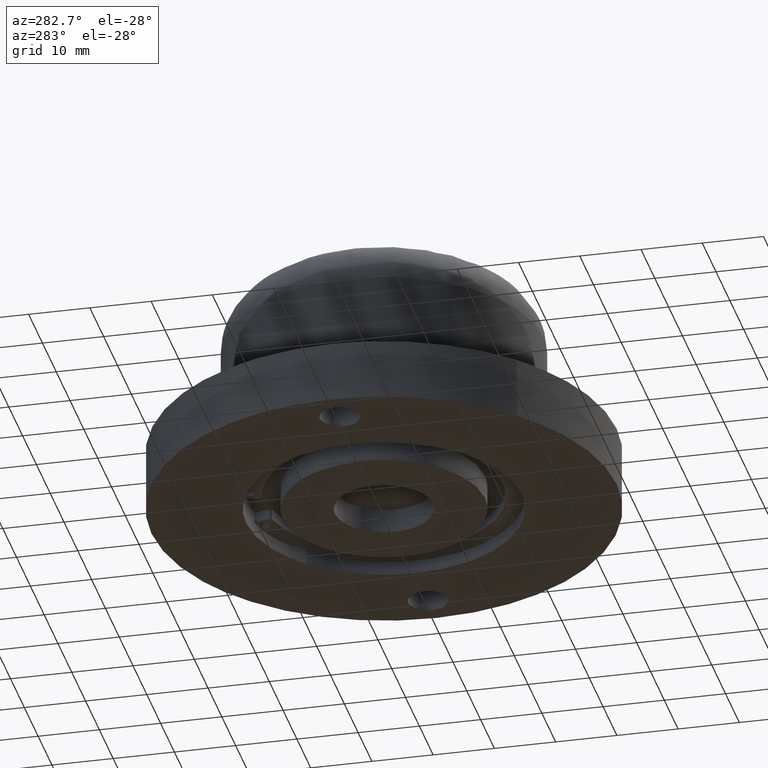
[diagram: clean part render]
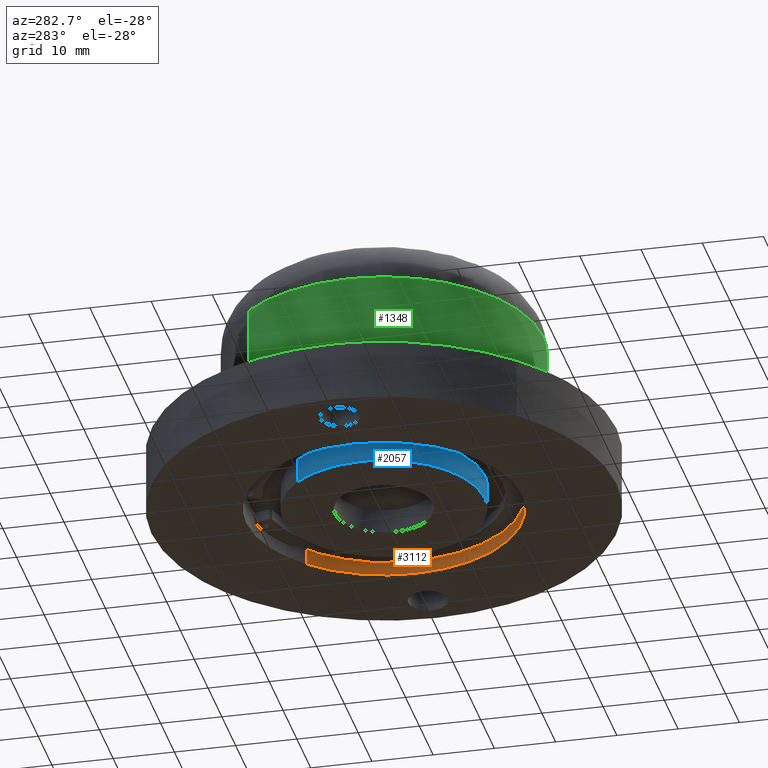
[diagram: same view with three faces highlighted in distinct colors, each labeled with its STEP entity id]
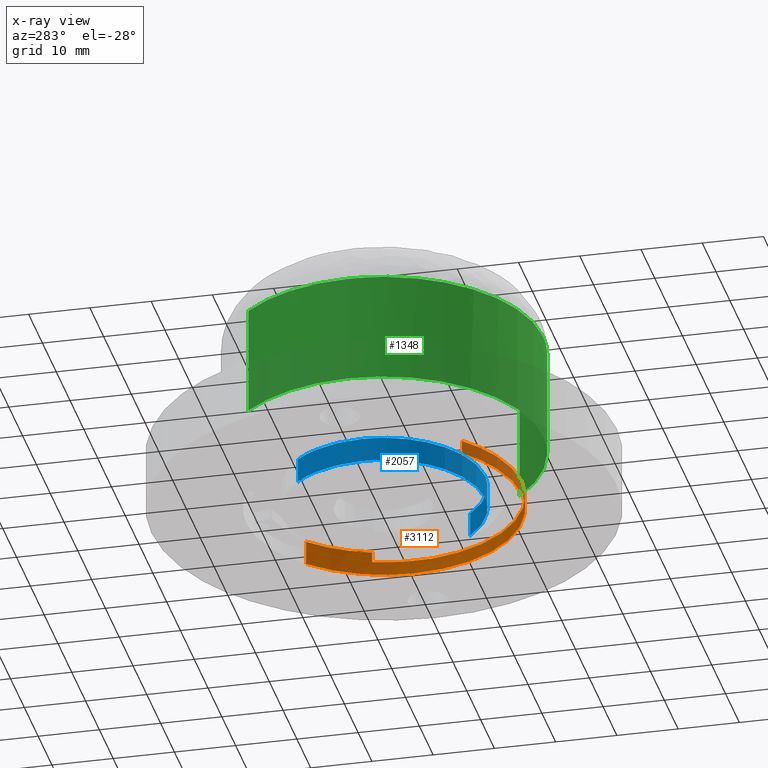
[diagram: x-ray of the same camera — body ghosted, the three highlighted faces saturated]
A machine part, auxiliary view with three faces highlighted in distinct colors.
The next image is the same camera in x-ray (body ghosted, the three faces saturated) — at least one of them is partly hidden behind the body in this view.
Their STEP definitions:

[orange] entity #3112 — the highlighted face is a freeform B-spline surface patch.
#2502=CARTESIAN_POINT('',(21.461298704985850,6.757415030569860,4.0));
#2503=VERTEX_POINT('',#2502);
#2521=CARTESIAN_POINT('',(15.588206037484660,16.225222110434320,4.0));
#2522=VERTEX_POINT('',#2521);
#2530=CARTESIAN_POINT('',(15.588206037484660,16.225222110434320,4.0));
#2531=CARTESIAN_POINT('',(16.645479522244440,15.209712594921200,3.999999999999992));
#2532=CARTESIAN_POINT('',(18.139009383689100,13.463488660675020,4.000000000000009));
#2533=CARTESIAN_POINT('',(20.120222387526109,10.269566843945579,4.000000000000001));
#2534=CARTESIAN_POINT('',(21.021211407191629,8.155780293965776,3.999999999999998));
#2535=CARTESIAN_POINT('',(21.461298704985850,6.757415030569860,4.0));
#2536=B_SPLINE_CURVE_WITH_KNOTS('',3,(#2530,#2531,#2532,#2533,#2534,#2535),.UNSPECIFIED.,.F.,.U.,(4,1,1,4),(4.611211E-009,4.397893220981758,6.860704411252302,11.258597627622599),.UNSPECIFIED.);
#2537=EDGE_CURVE('',#2522,#2503,#2536,.T.);
#2555=CARTESIAN_POINT('',(22.500000000000000,0.0,0.0));
#2556=VERTEX_POINT('',#2555);
#2557=CARTESIAN_POINT('',(-0.000001007943943,-22.499999999999979,0.0));
#2558=VERTEX_POINT('',#2557);
#2559=CARTESIAN_POINT('',(22.500000000000000,0.0,0.0));
#2560=CARTESIAN_POINT('',(22.500084421633488,-1.196509804189176,0.0));
#2561=CARTESIAN_POINT('',(22.319695605257539,-3.451434104914415,0.0));
#2562=CARTESIAN_POINT('',(21.625261004637292,-6.416037172447368,0.0));
#2563=CARTESIAN_POINT('',(20.669832038664790,-9.010649973098776,0.0));
#2564=CARTESIAN_POINT('',(19.529704174569719,-11.275728144356220,0.0));
#2565=CARTESIAN_POINT('',(18.185043236328909,-13.315084904862980,0.0));
#2566=CARTESIAN_POINT('',(16.612803665246791,-15.242922577701490,0.0));
#2567=CARTESIAN_POINT('',(14.934551686697841,-16.890561685435610,0.0));
#2568=CARTESIAN_POINT('',(12.941870068568850,-18.455508169422561,0.0));
#2569=CARTESIAN_POINT('',(10.600608099167451,-19.928105995401811,0.0));
#2570=CARTESIAN_POINT('',(7.443913242386977,-21.350773155513970,0.0));
#2571=CARTESIAN_POINT('',(3.773576835690184,-22.294018892011540,0.0));
#2572=CARTESIAN_POINT('',(1.196498320649902,-22.500064118313830,0.0));
#2573=CARTESIAN_POINT('',(-0.000001007943943,-22.499999999999979,0.0));
#2574=B_SPLINE_CURVE_WITH_KNOTS('',3,(#2559,#2560,#2561,#2562,#2563,#2564,#2565,#2566,#2567,#2568,#2569,#2570,#2571,#2572,#2573),.UNSPECIFIED.,.F.,.U.,(4,1,1,1,1,1,1,1,1,1,1,1,4),(0.000000054818592,3.589519467578437,6.764863016691638,9.111861811803166,11.873045435385009,14.358083994149879,16.428995356954381,19.328154013437210,21.399065162000191,24.022171446276658,27.611698208319389,31.753474319223422,35.342973363759612),.UNSPECIFIED.);
#2575=EDGE_CURVE('',#2556,#2558,#2574,.T.);
#2577=CARTESIAN_POINT('',(15.588206218042719,16.225222286121198,-2.081668E-016));
#2578=VERTEX_POINT('',#2577);
#2579=CARTESIAN_POINT('',(15.588206218042719,16.225222286121198,-2.081668E-016));
#2580=CARTESIAN_POINT('',(16.336925753051339,15.505950925662621,-1.989387E-016));
#2581=CARTESIAN_POINT('',(17.670989713196949,14.033613017425189,-1.800488E-016));
#2582=CARTESIAN_POINT('',(19.578002296755201,11.270492206081190,-1.445985E-016));
#2583=CARTESIAN_POINT('',(21.185583473393351,7.941988164421415,-1.018943E-016));
#2584=CARTESIAN_POINT('',(22.262372888276101,4.011337908746667,-5.146478E-017));
#2585=CARTESIAN_POINT('',(22.500111218608470,1.321395872532981,-1.695328E-017));
#2586=CARTESIAN_POINT('',(22.500000000000000,0.0,0.0));
#2587=B_SPLINE_CURVE_WITH_KNOTS('',3,(#2579,#2580,#2581,#2582,#2583,#2584,#2585,#2586),.UNSPECIFIED.,.F.,.U.,(4,1,1,1,1,4),(0.000000014759230,3.114704697409676,5.946268077443961,10.052019635387680,14.157780201698150,18.121957143275409),.UNSPECIFIED.);
#2588=EDGE_CURVE('',#2578,#2556,#2587,.T.);
#2623=CARTESIAN_POINT('',(-15.588206217749841,-16.225222286402900,4.926615E-016));
#2624=VERTEX_POINT('',#2623);
#2636=CARTESIAN_POINT('',(-0.000001007943943,-22.499999999999979,0.0));
#2637=CARTESIAN_POINT('',(-1.076312043869605,-22.500038106771889,3.401655E-017));
#2638=CARTESIAN_POINT('',(-3.453170942692648,-22.329191823971360,1.091366E-016));
#2639=CARTESIAN_POINT('',(-6.871729787357237,-21.528062211943809,2.171793E-016));
#2640=CARTESIAN_POINT('',(-9.781332259727018,-20.326279036486770,3.091366E-016));
#2641=CARTESIAN_POINT('',(-12.713169818218390,-18.669998914277318,4.017966E-016));
#2642=CARTESIAN_POINT('',(-14.488811371346880,-17.281796453356570,4.579154E-016));
#2643=CARTESIAN_POINT('',(-15.588206217749841,-16.225222286402900,4.926615E-016));
#2644=B_SPLINE_CURVE_WITH_KNOTS('',3,(#2636,#2637,#2638,#2639,#2640,#2641,#2642,#2643),.UNSPECIFIED.,.F.,.U.,(4,1,1,1,1,4),(0.000000014218646,3.228937824648604,7.130590066548935,10.494044223362691,12.646682252483870,17.221014949854158),.UNSPECIFIED.);
#2645=EDGE_CURVE('',#2558,#2624,#2644,.T.);
#3037=CARTESIAN_POINT('',(15.588206055318709,16.225222093300449,4.100000000000000));
#3038=CARTESIAN_POINT('',(31.813428148619156,0.637016037981732,4.100000000000000));
#3039=CARTESIAN_POINT('',(16.225222093300449,-15.588206055318709,4.100000000000000));
#3040=CARTESIAN_POINT('',(0.637016037981732,-31.813428148619156,4.100000000000000));
#3041=CARTESIAN_POINT('',(-15.588206055318709,-16.225222093300449,4.100000000000000));
#3042=CARTESIAN_POINT('',(15.588206055318709,16.225222093300449,-0.102500000000000));
#3043=CARTESIAN_POINT('',(31.813428148619156,0.637016037981732,-0.102500000000000));
#3044=CARTESIAN_POINT('',(16.225222093300449,-15.588206055318709,-0.102500000000000));
#3045=CARTESIAN_POINT('',(0.637016037981732,-31.813428148619156,-0.102500000000000));
#3046=CARTESIAN_POINT('',(-15.588206055318709,-16.225222093300449,-0.102500000000000));
#3054=(BOUNDED_SURFACE()B_SPLINE_SURFACE(2,1,((#3037,#3042),(#3038,#3043),(#3039,#3044),(#3040,#3045),(#3041,#3046)),.UNSPECIFIED.,.F.,.F.,.U.)B_SPLINE_SURFACE_WITH_KNOTS((3,2,3),(2,2),(0.0,37.279220613578552,74.558441227157104),(0.0,4.202500000000000),.UNSPECIFIED.)GEOMETRIC_REPRESENTATION_ITEM()RATIONAL_B_SPLINE_SURFACE(((1.0,1.0),(0.707106781186548,0.707106781186548),(1.0,1.0),(0.707106781186548,0.707106781186548),(1.0,1.0)))REPRESENTATION_ITEM('')SURFACE());
#3055=ORIENTED_EDGE('',*,*,#2588,.T.);
#3056=ORIENTED_EDGE('',*,*,#2575,.T.);
#3057=ORIENTED_EDGE('',*,*,#2645,.T.);
#3058=CARTESIAN_POINT('',(-15.588206031640730,-16.225222116048808,2.250000000000231));
#3059=VERTEX_POINT('',#3058);
#3060=CARTESIAN_POINT('',(-15.588206031640730,-16.225222116048808,2.250000000000231));
#3061=CARTESIAN_POINT('',(-15.588206217749841,-16.225222286402900,4.926615E-016));
#3062=QUASI_UNIFORM_CURVE('',1,(#3060,#3061),.UNSPECIFIED.,.F.,.U.);
#3063=EDGE_CURVE('',#3059,#2624,#3062,.T.);
#3064=ORIENTED_EDGE('',*,*,#3063,.F.);
#3065=CARTESIAN_POINT('',(-0.000000973178539,-22.499999999999979,2.250000000000085));
#3066=VERTEX_POINT('',#3065);
#3067=CARTESIAN_POINT('',(-0.000000973178539,-22.499999999999979,2.250000000000085));
#3068=CARTESIAN_POINT('',(-1.031464537365645,-22.500034189043280,2.250000000000103));
#3069=CARTESIAN_POINT('',(-3.273784162294135,-22.345576397595099,2.250000000000133));
#3070=CARTESIAN_POINT('',(-6.304617732022301,-21.673422132211449,2.250000000000171));
#3071=CARTESIAN_POINT('',(-9.462565108374351,-20.499933379318250,2.250000000000202));
#3072=CARTESIAN_POINT('',(-12.545115556580919,-18.818822723518341,2.250000000000223));
#3073=CARTESIAN_POINT('',(-14.618089571007770,-17.157402602431951,2.250000000000231));
#3074=CARTESIAN_POINT('',(-15.588206031640730,-16.225222116048808,2.250000000000231));
#3075=B_SPLINE_CURVE_WITH_KNOTS('',3,(#3067,#3068,#3069,#3070,#3071,#3072,#3073,#3074),.UNSPECIFIED.,.F.,.U.,(4,1,1,1,1,4),(0.000000014216898,3.094395116773921,6.726970710326494,9.283186606547154,13.184840119859601,17.221014872080300),.UNSPECIFIED.);
#3076=EDGE_CURVE('',#3066,#3059,#3075,.T.);
#3077=ORIENTED_EDGE('',*,*,#3076,.F.);
#3078=CARTESIAN_POINT('',(21.461298704985900,6.757415030569860,2.249999999999405));
#3079=VERTEX_POINT('',#3078);
#3080=CARTESIAN_POINT('',(21.461298704985900,6.757415030569860,2.249999999999405));
#3081=CARTESIAN_POINT('',(21.874060171797399,5.446979462053194,2.249999999999425));
#3082=CARTESIAN_POINT('',(22.411583275024011,2.965952034556976,2.249999999999453));
#3083=CARTESIAN_POINT('',(22.562500829329220,-0.392911894650313,2.249999999999486));
#3084=CARTESIAN_POINT('',(22.270921337241340,-3.737647167205898,2.249999999999577));
#3085=CARTESIAN_POINT('',(21.479142796887089,-7.066357372958608,2.249999999999601));
#3086=CARTESIAN_POINT('',(20.086332904471760,-10.308497361590350,2.249999999999689));
#3087=CARTESIAN_POINT('',(18.305984844463339,-13.221417369801671,2.249999999999741));
#3088=CARTESIAN_POINT('',(16.433778789938270,-15.466136984073680,2.249999999999800));
#3089=CARTESIAN_POINT('',(14.409204705636320,-17.328567037289279,2.249999999999844));
#3090=CARTESIAN_POINT('',(12.650041573775731,-18.651577739959940,2.249999999999889));
#3091=CARTESIAN_POINT('',(10.675095125591740,-19.851287354860169,2.249999999999929));
#3092=CARTESIAN_POINT('',(8.040044099831034,-21.102655623814648,2.249999999999959));
#3093=CARTESIAN_POINT('',(4.451367186854829,-22.200054073947602,2.250000000000076));
#3094=CARTESIAN_POINT('',(1.538781866729575,-22.500210672231809,2.250000000000036));
#3095=CARTESIAN_POINT('',(-0.000000973178539,-22.499999999999979,2.250000000000085));
#3096=B_SPLINE_CURVE_WITH_KNOTS('',3,(#3080,#3081,#3082,#3083,#3084,#3085,#3086,#3087,#3088,#3089,#3090,#3091,#3092,#3093,#3094,#3095),.UNSPECIFIED.,.F.,.U.,(4,1,1,1,1,1,1,1,1,1,1,1,1,4),(0.000000051172144,4.121689372997068,7.583956688152156,10.056985513913750,14.178717154172880,17.805814164527028,20.608625583875600,24.400548004355478,26.543829045678908,28.852002970672320,30.995303535835859,33.468341797129277,37.590060066702897,42.206370948490303),.UNSPECIFIED.);
#3097=EDGE_CURVE('',#3079,#3066,#3096,.T.);
#3098=ORIENTED_EDGE('',*,*,#3097,.F.);
#3099=CARTESIAN_POINT('',(21.461298704985850,6.757415030569860,4.0));
#3100=CARTESIAN_POINT('',(21.461298704985900,6.757415030569860,2.249999999999405));
#3101=QUASI_UNIFORM_CURVE('',1,(#3099,#3100),.UNSPECIFIED.,.F.,.U.);
#3102=EDGE_CURVE('',#2503,#3079,#3101,.T.);
#3103=ORIENTED_EDGE('',*,*,#3102,.F.);
#3104=ORIENTED_EDGE('',*,*,#2537,.F.);
#3105=CARTESIAN_POINT('',(15.588206037484660,16.225222110434320,4.0));
#3106=CARTESIAN_POINT('',(15.588206218042719,16.225222286121198,-2.081668E-016));
#3107=QUASI_UNIFORM_CURVE('',1,(#3105,#3106),.UNSPECIFIED.,.F.,.U.);
#3108=EDGE_CURVE('',#2522,#2578,#3107,.T.);
#3109=ORIENTED_EDGE('',*,*,#3108,.T.);
#3110=EDGE_LOOP('',(#3055,#3056,#3057,#3064,#3077,#3098,#3103,#3104,#3109));
#3111=FACE_OUTER_BOUND('',#3110,.T.);
#3112=ADVANCED_FACE('',(#3111),#3054,.F.);

[blue] entity #2057 — the highlighted face is a freeform B-spline surface patch.
#1619=CARTESIAN_POINT('',(11.968676961405169,-11.357850386732320,3.801882E-012));
#1620=VERTEX_POINT('',#1619);
#1632=CARTESIAN_POINT('',(-0.000000775139092,-16.499999999999979,0.0));
#1633=VERTEX_POINT('',#1632);
#1634=CARTESIAN_POINT('',(11.968676961405169,-11.357850386732320,3.801882E-012));
#1635=CARTESIAN_POINT('',(10.984789090985879,-12.395316378407610,3.489348E-012));
#1636=CARTESIAN_POINT('',(9.045307793801317,-13.967843722948130,2.873266E-012));
#1637=CARTESIAN_POINT('',(6.152505709529919,-15.388439940342391,1.954360E-012));
#1638=CARTESIAN_POINT('',(3.243038940135712,-16.271971440735658,1.030160E-012));
#1639=CARTESIAN_POINT('',(1.255437118756049,-16.500275600590339,3.987932E-013));
#1640=CARTESIAN_POINT('',(-0.000000775139092,-16.499999999999979,0.0));
#1641=B_SPLINE_CURVE_WITH_KNOTS('',3,(#1634,#1635,#1636,#1637,#1638,#1639,#1640),.UNSPECIFIED.,.F.,.U.,(4,1,1,1,4),(0.000000018204332,4.289325287377976,7.427840289627335,9.624824988455574,13.391061784010050),.UNSPECIFIED.);
#1642=EDGE_CURVE('',#1620,#1633,#1641,.T.);
#1644=CARTESIAN_POINT('',(-16.500000000000000,0.0,0.0));
#1645=VERTEX_POINT('',#1644);
#1646=CARTESIAN_POINT('',(-0.000000775139092,-16.499999999999979,0.0));
#1647=CARTESIAN_POINT('',(-1.248687746818598,-16.500276981873480,0.0));
#1648=CARTESIAN_POINT('',(-3.239656736031277,-16.272811059789490,0.0));
#1649=CARTESIAN_POINT('',(-6.249951593112439,-15.359748829537111,0.0));
#1650=CARTESIAN_POINT('',(-8.583690488987827,-14.185068146472620,0.0));
#1651=CARTESIAN_POINT('',(-10.598194381921360,-12.700331333389590,0.0));
#1652=CARTESIAN_POINT('',(-12.366225815755641,-11.027533720586330,0.0));
#1653=CARTESIAN_POINT('',(-13.959986777233210,-8.959283221878900,0.0));
#1654=CARTESIAN_POINT('',(-15.238405517897339,-6.495022045210793,0.0));
#1655=CARTESIAN_POINT('',(-16.222388517718041,-3.577074260860902,0.0));
#1656=CARTESIAN_POINT('',(-16.500372596683661,-1.383686951275259,0.0));
#1657=CARTESIAN_POINT('',(-16.500000000000000,0.0,0.0));
#1658=B_SPLINE_CURVE_WITH_KNOTS('',3,(#1646,#1647,#1648,#1649,#1650,#1651,#1652,#1653,#1654,#1655,#1656,#1657),.UNSPECIFIED.,.F.,.U.,(4,1,1,1,1,1,1,1,1,4),(0.000000063737868,3.745983837319226,5.973329675447150,9.415591289025549,11.541722752784070,13.465298644780550,16.705067737391211,19.337391216413419,21.767237217739769,25.918179613273669),.UNSPECIFIED.);
#1659=EDGE_CURVE('',#1633,#1645,#1658,.T.);
#1661=CARTESIAN_POINT('',(-11.968676961405210,11.357850386732361,3.801411E-012));
#1662=VERTEX_POINT('',#1661);
#1663=CARTESIAN_POINT('',(-16.500000000000000,0.0,0.0));
#1664=CARTESIAN_POINT('',(-16.500093935574050,0.978686887331953,3.275612E-013));
#1665=CARTESIAN_POINT('',(-16.360251650265472,2.544539418220553,8.516435E-013));
#1666=CARTESIAN_POINT('',(-15.813478013553880,4.865869839065637,1.628580E-012));
#1667=CARTESIAN_POINT('',(-15.135667435314730,6.672952209941419,2.233401E-012));
#1668=CARTESIAN_POINT('',(-13.928140868614250,8.989943501103703,3.008885E-012));
#1669=CARTESIAN_POINT('',(-12.844708374387460,10.435152513913220,3.492589E-012));
#1670=CARTESIAN_POINT('',(-11.968676961405210,11.357850386732361,3.801411E-012));
#1671=B_SPLINE_CURVE_WITH_KNOTS('',3,(#1663,#1664,#1665,#1666,#1667,#1668,#1669,#1670),.UNSPECIFIED.,.F.,.U.,(4,1,1,1,1,4),(0.000000014829789,2.936042456992983,4.697677696256275,7.144362460186496,8.710257952234343,12.527119024813331),.UNSPECIFIED.);
#1672=EDGE_CURVE('',#1645,#1662,#1671,.T.);
#1979=CARTESIAN_POINT('',(11.968677121702740,-11.357850498946940,4.100000000000000));
#1980=CARTESIAN_POINT('',(0.610826622755804,-23.326527620649678,4.100000000000000));
#1981=CARTESIAN_POINT('',(-11.357850498946940,-11.968677121702740,4.100000000000000));
#1982=CARTESIAN_POINT('',(-23.326527620649678,-0.610826622755804,4.100000000000000));
#1983=CARTESIAN_POINT('',(-11.968677121702740,11.357850498946940,4.100000000000000));
#1984=CARTESIAN_POINT('',(11.968677121702740,-11.357850498946940,-0.102500000000000));
#1985=CARTESIAN_POINT('',(0.610826622755804,-23.326527620649678,-0.102500000000000));
#1986=CARTESIAN_POINT('',(-11.357850498946940,-11.968677121702740,-0.102500000000000));
#1987=CARTESIAN_POINT('',(-23.326527620649678,-0.610826622755804,-0.102500000000000));
#1988=CARTESIAN_POINT('',(-11.968677121702740,11.357850498946940,-0.102500000000000));
#1996=(BOUNDED_SURFACE()B_SPLINE_SURFACE(2,1,((#1979,#1984),(#1980,#1985),(#1981,#1986),(#1982,#1987),(#1983,#1988)),.UNSPECIFIED.,.F.,.F.,.U.)B_SPLINE_SURFACE_WITH_KNOTS((3,2,3),(2,2),(0.0,27.338095116624270,54.676190233248548),(0.0,4.202500000000000),.UNSPECIFIED.)GEOMETRIC_REPRESENTATION_ITEM()RATIONAL_B_SPLINE_SURFACE(((1.0,1.0),(0.707106781186548,0.707106781186548),(1.0,1.0),(0.707106781186548,0.707106781186548),(1.0,1.0)))REPRESENTATION_ITEM('')SURFACE());
#1997=ORIENTED_EDGE('',*,*,#1642,.F.);
#1998=CARTESIAN_POINT('',(11.968676961649249,-11.357850386475111,4.0));
#1999=VERTEX_POINT('',#1998);
#2000=CARTESIAN_POINT('',(11.968676961649249,-11.357850386475111,4.0));
#2001=CARTESIAN_POINT('',(11.968676961405169,-11.357850386732320,3.801882E-012));
#2002=QUASI_UNIFORM_CURVE('',1,(#2000,#2001),.UNSPECIFIED.,.F.,.U.);
#2003=EDGE_CURVE('',#1999,#1620,#2002,.T.);
#2004=ORIENTED_EDGE('',*,*,#2003,.F.);
#2005=CARTESIAN_POINT('',(-0.000000775139092,-16.499999999999979,4.0));
#2006=VERTEX_POINT('',#2005);
#2007=CARTESIAN_POINT('',(11.968676961649249,-11.357850386475111,4.0));
#2008=CARTESIAN_POINT('',(11.152664194395530,-12.218068598223660,4.000000000000002));
#2009=CARTESIAN_POINT('',(9.708408474394167,-13.443441752582009,4.000000000000017));
#2010=CARTESIAN_POINT('',(7.239973662596734,-14.898394984033320,3.999999999999993));
#2011=CARTESIAN_POINT('',(5.062017039053404,-15.769379129730890,4.000000000000020));
#2012=CARTESIAN_POINT('',(2.545663701152891,-16.362291743389921,3.999999999999968));
#2013=CARTESIAN_POINT('',(0.941560857529339,-16.500084529601821,4.000000000000058));
#2014=CARTESIAN_POINT('',(-0.000000775139092,-16.499999999999979,4.0));
#2015=B_SPLINE_CURVE_WITH_KNOTS('',3,(#2007,#2008,#2009,#2010,#2011,#2012,#2013,#2014),.UNSPECIFIED.,.F.,.U.,(4,1,1,1,1,4),(0.000000018207421,3.557001832210140,5.649360593906550,8.578648615879637,10.566388223454940,13.391061784364620),.UNSPECIFIED.);
#2016=EDGE_CURVE('',#1999,#2006,#2015,.T.);
#2017=ORIENTED_EDGE('',*,*,#2016,.T.);
#2018=CARTESIAN_POINT('',(-16.500000000000000,0.0,4.0));
#2019=VERTEX_POINT('',#2018);
#2020=CARTESIAN_POINT('',(-0.000000775139092,-16.499999999999979,4.0));
#2021=CARTESIAN_POINT('',(-1.248687707669788,-16.500276876803550,4.000000000000012));
#2022=CARTESIAN_POINT('',(-3.239656820639448,-16.272811278881559,3.999999999999990));
#2023=CARTESIAN_POINT('',(-6.249951575072144,-15.359748735198460,3.999999999999993));
#2024=CARTESIAN_POINT('',(-8.583690424453968,-14.185068117383100,4.000000000000041));
#2025=CARTESIAN_POINT('',(-10.598194679566859,-12.700331440198950,3.999999999999937));
#2026=CARTESIAN_POINT('',(-12.366224141112459,-11.027533280366990,4.000000000000054));
#2027=CARTESIAN_POINT('',(-13.959991382820020,-8.959284406249260,3.999999999999987));
#2028=CARTESIAN_POINT('',(-15.222802208195130,-6.525074197197268,3.999999999999999));
#2029=CARTESIAN_POINT('',(-16.215533672528540,-3.610804622571055,4.0));
#2030=CARTESIAN_POINT('',(-16.500416458626830,-1.417446212818309,4.0));
#2031=CARTESIAN_POINT('',(-16.500000000000000,0.0,4.0));
#2032=B_SPLINE_CURVE_WITH_KNOTS('',3,(#2020,#2021,#2022,#2023,#2024,#2025,#2026,#2027,#2028,#2029,#2030,#2031),.UNSPECIFIED.,.F.,.U.,(4,1,1,1,1,1,1,1,1,4),(0.000000063737868,3.745983837319226,5.973329675447150,9.415591289025549,11.541722752784070,13.465298644780550,16.705067737391211,19.337391216413419,21.665983173763401,25.918179613273669),.UNSPECIFIED.);
#2033=EDGE_CURVE('',#2006,#2019,#2032,.T.);
#2034=ORIENTED_EDGE('',*,*,#2033,.T.);
#2035=CARTESIAN_POINT('',(-11.968676961649290,11.357850386475150,4.0));
#2036=VERTEX_POINT('',#2035);
#2037=CARTESIAN_POINT('',(-16.500000000000000,0.0,4.0));
#2038=CARTESIAN_POINT('',(-16.500222018484990,1.174439219009774,4.000000000000004));
#2039=CARTESIAN_POINT('',(-16.318070360276550,2.870720046987506,3.999999999999987));
#2040=CARTESIAN_POINT('',(-15.627074709375970,5.458129619005789,4.000000000000017));
#2041=CARTESIAN_POINT('',(-14.777806589435810,7.481485487101053,3.999999999999978));
#2042=CARTESIAN_POINT('',(-13.482158891822740,9.600988386280774,4.000000000000001));
#2043=CARTESIAN_POINT('',(-12.530110986834559,10.766290523299469,4.000000000000048));
#2044=CARTESIAN_POINT('',(-11.968676961649290,11.357850386475150,4.0));
#2045=B_SPLINE_CURVE_WITH_KNOTS('',3,(#2037,#2038,#2039,#2040,#2041,#2042,#2043,#2044),.UNSPECIFIED.,.F.,.U.,(4,1,1,1,1,4),(0.000000014828075,3.523253725374538,5.089144237698300,8.025176811392296,10.080420592119429,12.527119024458740),.UNSPECIFIED.);
#2046=EDGE_CURVE('',#2019,#2036,#2045,.T.);
#2047=ORIENTED_EDGE('',*,*,#2046,.T.);
#2048=CARTESIAN_POINT('',(-11.968676961649290,11.357850386475150,4.0));
#2049=CARTESIAN_POINT('',(-11.968676961405210,11.357850386732361,3.801411E-012));
#2050=QUASI_UNIFORM_CURVE('',1,(#2048,#2049),.UNSPECIFIED.,.F.,.U.);
#2051=EDGE_CURVE('',#2036,#1662,#2050,.T.);
#2052=ORIENTED_EDGE('',*,*,#2051,.T.);
#2053=ORIENTED_EDGE('',*,*,#1672,.F.);
#2054=ORIENTED_EDGE('',*,*,#1659,.F.);
#2055=EDGE_LOOP('',(#1997,#2004,#2017,#2034,#2047,#2052,#2053,#2054));
#2056=FACE_OUTER_BOUND('',#2055,.T.);
#2057=ADVANCED_FACE('',(#2056),#1996,.T.);

[green] entity #1348 — the highlighted face is a freeform B-spline surface patch.
#800=CARTESIAN_POINT('',(-25.999999999999741,-2.009686E-015,28.000000000059298));
#801=VERTEX_POINT('',#800);
#855=CARTESIAN_POINT('',(-18.859733453716679,17.897218830917581,28.000000000059298));
#856=VERTEX_POINT('',#855);
#869=CARTESIAN_POINT('',(-25.999999999999741,-2.009686E-015,28.000000000059298));
#870=CARTESIAN_POINT('',(-26.000051954629740,1.182324254518316,28.000000000059320));
#871=CARTESIAN_POINT('',(-25.855979428018330,3.289934905158254,28.000000000059281));
#872=CARTESIAN_POINT('',(-25.273243311875351,6.323189175135181,28.000000000059330));
#873=CARTESIAN_POINT('',(-24.376884216210410,9.225670944524639,28.000000000059281));
#874=CARTESIAN_POINT('',(-22.966008279671708,12.375643389097940,28.000000000059281));
#875=CARTESIAN_POINT('',(-21.093327038164819,15.339568555392930,28.000000000059480));
#876=CARTESIAN_POINT('',(-19.567443333481361,17.151467193017290,28.000000000059242));
#877=CARTESIAN_POINT('',(-18.859733453716679,17.897218830917581,28.000000000059298));
#878=B_SPLINE_CURVE_WITH_KNOTS('',3,(#869,#870,#871,#872,#873,#874,#875,#876,#877),.UNSPECIFIED.,.F.,.U.,(4,1,1,1,1,1,4),(0.000000012727657,3.546971912563091,6.322879466614101,9.252992969258049,12.645745639215409,16.655381712799429,19.739702720165660),.UNSPECIFIED.);
#879=EDGE_CURVE('',#801,#856,#878,.T.);
#914=CARTESIAN_POINT('',(-0.000000937669430,-25.999999999999979,28.000000000059298));
#915=VERTEX_POINT('',#914);
#916=CARTESIAN_POINT('',(-0.000000937669430,-25.999999999999979,28.000000000059298));
#917=CARTESIAN_POINT('',(-1.329447299209452,-26.000081678380820,28.000000000059298));
#918=CARTESIAN_POINT('',(-3.828783729788278,-25.807873356318751,28.000000000059341));
#919=CARTESIAN_POINT('',(-7.677127066206571,-24.943788153502140,28.000000000059298));
#920=CARTESIAN_POINT('',(-10.909306903873460,-23.685579761805741,28.000000000059259));
#921=CARTESIAN_POINT('',(-13.801204650618409,-22.093800438023170,28.000000000059519));
#922=CARTESIAN_POINT('',(-16.027126123036599,-20.536331033175291,28.000000000058979));
#923=CARTESIAN_POINT('',(-18.232693358749550,-18.610063772366338,28.000000000059881));
#924=CARTESIAN_POINT('',(-20.393971313000641,-16.254719896198019,28.000000000059110));
#925=CARTESIAN_POINT('',(-22.554950540971710,-13.146173902241230,28.000000000058979));
#926=CARTESIAN_POINT('',(-24.182957335445749,-9.784374526134194,28.000000000059220));
#927=CARTESIAN_POINT('',(-25.189935838087312,-6.638982399821145,28.000000000059380));
#928=CARTESIAN_POINT('',(-25.832378537823420,-3.509721972073266,28.000000000059220));
#929=CARTESIAN_POINT('',(-26.000090544594439,-1.329455927772033,28.000000000059330));
#930=CARTESIAN_POINT('',(-25.999999999999741,-2.009686E-015,28.000000000059298));
#931=B_SPLINE_CURVE_WITH_KNOTS('',3,(#916,#917,#918,#919,#920,#921,#922,#923,#924,#925,#926,#927,#928,#929,#930),.UNSPECIFIED.,.F.,.U.,(4,1,1,1,1,1,1,1,1,1,1,1,4),(0.000000047675670,3.988331005912372,7.498105351484185,11.805535395619620,14.358083796720390,17.389261568347461,19.941815326538979,23.132461344886462,26.961284697933039,31.268713449288100,34.299867382881622,36.852413289023367,40.840768035391697),.UNSPECIFIED.);
#932=EDGE_CURVE('',#915,#801,#931,.T.);
#934=CARTESIAN_POINT('',(18.859733453716789,-17.897218830917691,28.000000000059298));
#935=VERTEX_POINT('',#934);
#936=CARTESIAN_POINT('',(18.859733453716789,-17.897218830917691,28.000000000059298));
#937=CARTESIAN_POINT('',(17.914158454963768,-18.893777905210101,28.000000000059281));
#938=CARTESIAN_POINT('',(16.151444560630470,-20.478441537135350,28.000000000059320));
#939=CARTESIAN_POINT('',(13.190670555578849,-22.486701957116491,28.000000000059298));
#940=CARTESIAN_POINT('',(10.537574231063459,-23.831692254080728,28.000000000059249));
#941=CARTESIAN_POINT('',(7.443142680417130,-24.979069380736320,28.000000000059270));
#942=CARTESIAN_POINT('',(4.066329200390253,-25.786104664798739,28.000000000059320));
#943=CARTESIAN_POINT('',(1.373768219460312,-26.000095592449298,28.000000000059309));
#944=CARTESIAN_POINT('',(-0.000000937669430,-25.999999999999979,28.000000000059298));
#945=B_SPLINE_CURVE_WITH_KNOTS('',3,(#936,#937,#938,#939,#940,#941,#942,#943,#944),.UNSPECIFIED.,.F.,.U.,(4,1,1,1,1,1,4),(0.000000013964524,4.121299564114231,7.088642483410446,10.715370031439241,13.023302604505609,16.979767260915128,21.101066811068389),.UNSPECIFIED.);
#946=EDGE_CURVE('',#935,#915,#945,.T.);
#1212=CARTESIAN_POINT('',(-18.859733453437560,17.897218831211831,10.000000000000449));
#1213=VERTEX_POINT('',#1212);
#1227=CARTESIAN_POINT('',(-18.859733453716679,17.897218830917581,28.000000000059298));
#1228=CARTESIAN_POINT('',(-18.859733453437560,17.897218831211831,10.000000000000449));
#1229=QUASI_UNIFORM_CURVE('',1,(#1227,#1228),.UNSPECIFIED.,.F.,.U.);
#1230=EDGE_CURVE('',#856,#1213,#1229,.T.);
#1235=CARTESIAN_POINT('',(18.859733453437649,-17.897218831211919,10.000000000000449));
#1236=VERTEX_POINT('',#1235);
#1237=CARTESIAN_POINT('',(18.859733453716789,-17.897218830917691,28.000000000059298));
#1238=CARTESIAN_POINT('',(18.859733453437649,-17.897218831211919,10.000000000000449));
#1239=QUASI_UNIFORM_CURVE('',1,(#1237,#1238),.UNSPECIFIED.,.F.,.U.);
#1240=EDGE_CURVE('',#935,#1236,#1239,.T.);
#1278=CARTESIAN_POINT('',(18.859733646319469,-17.897218968037599,28.450000000060790));
#1279=CARTESIAN_POINT('',(0.962514678281874,-36.756952614357068,28.450000000060783));
#1280=CARTESIAN_POINT('',(-17.897218968037599,-18.859733646319469,28.450000000060790));
#1281=CARTESIAN_POINT('',(-36.756952614357068,-0.962514678281874,28.450000000060783));
#1282=CARTESIAN_POINT('',(-18.859733646319469,17.897218968037599,28.450000000060790));
#1283=CARTESIAN_POINT('',(18.859733646319469,-17.897218968037599,9.538749999998480));
#1284=CARTESIAN_POINT('',(0.962514678281874,-36.756952614357068,9.538749999998480));
#1285=CARTESIAN_POINT('',(-17.897218968037599,-18.859733646319469,9.538749999998480));
#1286=CARTESIAN_POINT('',(-36.756952614357068,-0.962514678281874,9.538749999998480));
#1287=CARTESIAN_POINT('',(-18.859733646319469,17.897218968037599,9.538749999998480));
#1295=(BOUNDED_SURFACE()B_SPLINE_SURFACE(2,1,((#1278,#1283),(#1279,#1284),(#1280,#1285),(#1281,#1286),(#1282,#1287)),.UNSPECIFIED.,.F.,.F.,.U.)B_SPLINE_SURFACE_WITH_KNOTS((3,2,3),(2,2),(0.0,43.078210486801858,86.156420973603716),(0.0,18.911250000062310),.UNSPECIFIED.)GEOMETRIC_REPRESENTATION_ITEM()RATIONAL_B_SPLINE_SURFACE(((1.0,1.0),(0.707106781186548,0.707106781186548),(1.0,1.0),(0.707106781186548,0.707106781186548),(1.0,1.0)))REPRESENTATION_ITEM('')SURFACE());
#1296=CARTESIAN_POINT('',(-26.0,0.0,10.0));
#1297=VERTEX_POINT('',#1296);
#1298=CARTESIAN_POINT('',(-26.0,0.0,10.0));
#1299=CARTESIAN_POINT('',(-26.000062718652931,1.387944358350477,10.000000000000050));
#1300=CARTESIAN_POINT('',(-25.760782721160531,4.369461418965334,10.000000000000091));
#1301=CARTESIAN_POINT('',(-24.769401880425551,8.218794714015054,10.000000000000220));
#1302=CARTESIAN_POINT('',(-23.464808315481580,11.300728324181120,10.000000000000270));
#1303=CARTESIAN_POINT('',(-21.734228179364880,14.459697394146099,10.000000000000330));
#1304=CARTESIAN_POINT('',(-20.133880637469531,16.555059737905239,10.000000000000441));
#1305=CARTESIAN_POINT('',(-18.859733453437560,17.897218831211831,10.000000000000449));
#1306=B_SPLINE_CURVE_WITH_KNOTS('',3,(#1298,#1299,#1300,#1301,#1302,#1303,#1304,#1305),.UNSPECIFIED.,.F.,.U.,(4,1,1,1,1,4),(0.000000012718726,4.163840380369164,8.944567807218679,11.874653322943860,14.187910205831500,19.739702720571419),.UNSPECIFIED.);
#1307=EDGE_CURVE('',#1297,#1213,#1306,.T.);
#1308=ORIENTED_EDGE('',*,*,#1307,.F.);
#1309=CARTESIAN_POINT('',(-0.000000937669494,-25.999999999999979,10.0));
#1310=VERTEX_POINT('',#1309);
#1311=CARTESIAN_POINT('',(-0.000000937669494,-25.999999999999979,10.0));
#1312=CARTESIAN_POINT('',(-1.542165150938767,-26.000142584536359,9.999999999999982));
#1313=CARTESIAN_POINT('',(-4.520080268791433,-25.734272222118509,10.000000000000041));
#1314=CARTESIAN_POINT('',(-8.541509144818868,-24.661194076482701,10.000000000000011));
#1315=CARTESIAN_POINT('',(-11.717265402243349,-23.276602185372941,9.999999999999993));
#1316=CARTESIAN_POINT('',(-14.339258079200500,-21.748450908948520,10.000000000000030));
#1317=CARTESIAN_POINT('',(-16.783582203491441,-19.947249813463671,9.999999999999920));
#1318=CARTESIAN_POINT('',(-19.215521856592389,-17.631898550334540,10.000000000000259));
#1319=CARTESIAN_POINT('',(-21.213747142214391,-15.135112855203630,9.999999999999787));
#1320=CARTESIAN_POINT('',(-22.878020496273180,-12.470916503018580,10.000000000000311));
#1321=CARTESIAN_POINT('',(-24.208074152909369,-9.681005222811159,10.000000000000030));
#1322=CARTESIAN_POINT('',(-25.168543037541919,-6.743299036080187,9.999999999999947));
#1323=CARTESIAN_POINT('',(-25.832374926661998,-3.509720638990650,10.000000000000050));
#1324=CARTESIAN_POINT('',(-26.000090891844859,-1.329456277780479,9.999999999999981));
#1325=CARTESIAN_POINT('',(-26.0,0.0,10.0));
#1326=B_SPLINE_CURVE_WITH_KNOTS('',3,(#1311,#1312,#1313,#1314,#1315,#1316,#1317,#1318,#1319,#1320,#1321,#1322,#1323,#1324,#1325),.UNSPECIFIED.,.F.,.U.,(4,1,1,1,1,1,1,1,1,1,1,1,4),(0.000000047673083,4.626470133979389,8.933913233814192,12.443672289234771,14.996221850880801,18.027401931789111,21.537089332013611,25.046875898182080,27.599421104138251,30.949645942676881,34.299867382881708,36.852413289023552,40.840768035391918),.UNSPECIFIED.);
#1327=EDGE_CURVE('',#1310,#1297,#1326,.T.);
#1328=ORIENTED_EDGE('',*,*,#1327,.F.);
#1329=CARTESIAN_POINT('',(18.859733453437649,-17.897218831211919,10.000000000000449));
#1330=CARTESIAN_POINT('',(17.800720327435890,-19.013398462509610,10.000000000000460));
#1331=CARTESIAN_POINT('',(15.773300234572909,-20.801372631559101,10.000000000000320));
#1332=CARTESIAN_POINT('',(12.754647813529321,-22.725439865301830,10.000000000000369));
#1333=CARTESIAN_POINT('',(10.228109688538179,-23.946394226604959,10.000000000000160));
#1334=CARTESIAN_POINT('',(7.597859798793640,-24.921670648964021,10.000000000000201));
#1335=CARTESIAN_POINT('',(4.231157669425583,-25.760264384167670,10.000000000000110));
#1336=CARTESIAN_POINT('',(1.538624149280733,-26.000153087904309,10.000000000000030));
#1337=CARTESIAN_POINT('',(-0.000000937669494,-25.999999999999979,10.0));
#1338=B_SPLINE_CURVE_WITH_KNOTS('',3,(#1329,#1330,#1331,#1332,#1333,#1334,#1335,#1336,#1337),.UNSPECIFIED.,.F.,.U.,(4,1,1,1,1,1,4),(0.000000013965895,4.615855580826871,8.077764220368556,10.715370031233610,13.023302604255459,16.485211243797579,21.101066810662878),.UNSPECIFIED.);
#1339=EDGE_CURVE('',#1236,#1310,#1338,.T.);
#1340=ORIENTED_EDGE('',*,*,#1339,.F.);
#1341=ORIENTED_EDGE('',*,*,#1240,.F.);
#1342=ORIENTED_EDGE('',*,*,#946,.T.);
#1343=ORIENTED_EDGE('',*,*,#932,.T.);
#1344=ORIENTED_EDGE('',*,*,#879,.T.);
#1345=ORIENTED_EDGE('',*,*,#1230,.T.);
#1346=EDGE_LOOP('',(#1308,#1328,#1340,#1341,#1342,#1343,#1344,#1345));
#1347=FACE_OUTER_BOUND('',#1346,.T.);
#1348=ADVANCED_FACE('',(#1347),#1295,.T.);